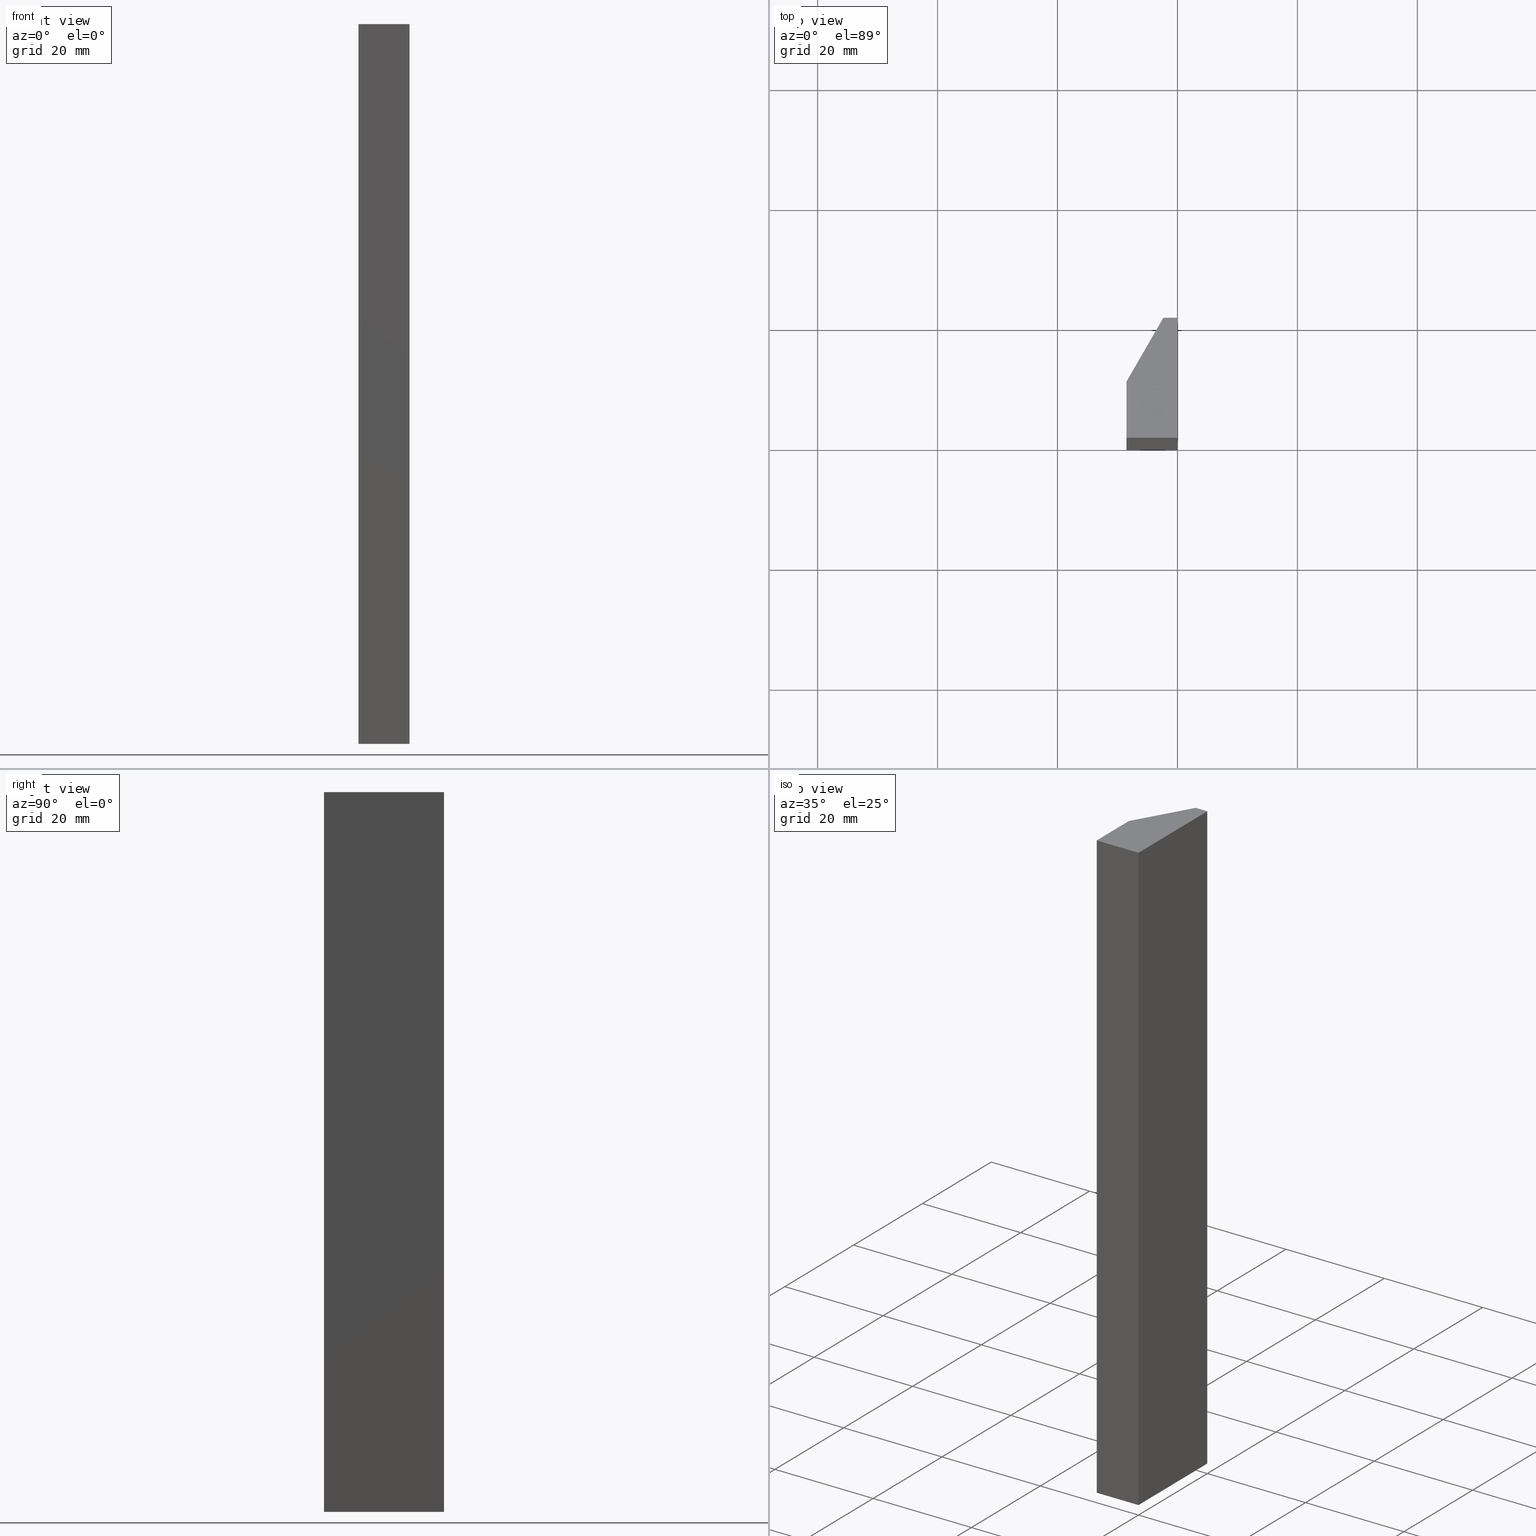
[diagram: canonical four-view strip — front | top / right | iso, engineering-drawing reading convention]
A machine part, canonical four-view strip (front | top / right | iso — engineering-drawing reading convention). The complete STEP part file that produces these views, byte-faithful:
ISO-10303-21;
HEADER;
/* Generated by software containing ST-Developer
 * from STEP Tools, Inc. (www.steptools.com) 
 */

FILE_DESCRIPTION(
/* description */ ('WKZ-0465'),
/* implementation_level */ '2;1');

FILE_NAME(
/* name */ 'O_3_01_06_06_00_WKZ-0465.stp',
/* time_stamp */ '2025-06-18T09:06:27+02:00',
/* author */ ('d.fischer'),
/* organization */ (''),
/* preprocessor_version */ 'ST-DEVELOPER v20',
/* originating_system */ 'Autodesk Inventor 2025',
/* authorisation */ '');

FILE_SCHEMA (('AUTOMOTIVE_DESIGN { 1 0 10303 214 3 1 1 }'));
ENDSEC;

DATA;
#10=MECHANICAL_DESIGN_GEOMETRIC_PRESENTATION_REPRESENTATION('',(#13),#225);
#11=SHAPE_REPRESENTATION_RELATIONSHIP('SRR','None',#232,#12);
#12=ADVANCED_BREP_SHAPE_REPRESENTATION('',(#14),#224);
#13=STYLED_ITEM('',(#241),#14);
#14=MANIFOLD_SOLID_BREP('Volumenk\X\F6rper1',#128);
#15=FACE_OUTER_BOUND('',#22,.T.);
#16=FACE_OUTER_BOUND('',#23,.T.);
#17=FACE_OUTER_BOUND('',#24,.T.);
#18=FACE_OUTER_BOUND('',#25,.T.);
#19=FACE_OUTER_BOUND('',#26,.T.);
#20=FACE_OUTER_BOUND('',#27,.T.);
#21=FACE_OUTER_BOUND('',#28,.T.);
#22=EDGE_LOOP('',(#84,#85,#86,#87,#88));
#23=EDGE_LOOP('',(#89,#90,#91,#92));
#24=EDGE_LOOP('',(#93,#94,#95,#96));
#25=EDGE_LOOP('',(#97,#98,#99,#100));
#26=EDGE_LOOP('',(#101,#102,#103,#104));
#27=EDGE_LOOP('',(#105,#106,#107,#108));
#28=EDGE_LOOP('',(#109,#110,#111,#112,#113));
#29=LINE('',#193,#44);
#30=LINE('',#195,#45);
#31=LINE('',#197,#46);
#32=LINE('',#199,#47);
#33=LINE('',#200,#48);
#34=LINE('',#203,#49);
#35=LINE('',#205,#50);
#36=LINE('',#206,#51);
#37=LINE('',#209,#52);
#38=LINE('',#210,#53);
#39=LINE('',#213,#54);
#40=LINE('',#214,#55);
#41=LINE('',#217,#56);
#42=LINE('',#218,#57);
#43=LINE('',#220,#58);
#44=VECTOR('',#162,10.);
#45=VECTOR('',#163,10.);
#46=VECTOR('',#164,10.);
#47=VECTOR('',#165,10.);
#48=VECTOR('',#166,10.);
#49=VECTOR('',#169,10.);
#50=VECTOR('',#170,10.);
#51=VECTOR('',#171,10.);
#52=VECTOR('',#174,10.);
#53=VECTOR('',#175,10.);
#54=VECTOR('',#178,10.);
#55=VECTOR('',#179,10.);
#56=VECTOR('',#182,10.);
#57=VECTOR('',#183,10.);
#58=VECTOR('',#186,10.);
#59=VERTEX_POINT('',#191);
#60=VERTEX_POINT('',#192);
#61=VERTEX_POINT('',#194);
#62=VERTEX_POINT('',#196);
#63=VERTEX_POINT('',#198);
#64=VERTEX_POINT('',#202);
#65=VERTEX_POINT('',#204);
#66=VERTEX_POINT('',#208);
#67=VERTEX_POINT('',#212);
#68=VERTEX_POINT('',#216);
#69=EDGE_CURVE('',#59,#60,#29,.T.);
#70=EDGE_CURVE('',#60,#61,#30,.T.);
#71=EDGE_CURVE('',#61,#62,#31,.T.);
#72=EDGE_CURVE('',#62,#63,#32,.T.);
#73=EDGE_CURVE('',#63,#59,#33,.T.);
#74=EDGE_CURVE('',#64,#60,#34,.T.);
#75=EDGE_CURVE('',#65,#64,#35,.T.);
#76=EDGE_CURVE('',#61,#65,#36,.T.);
#77=EDGE_CURVE('',#66,#65,#37,.T.);
#78=EDGE_CURVE('',#62,#66,#38,.T.);
#79=EDGE_CURVE('',#67,#66,#39,.T.);
#80=EDGE_CURVE('',#63,#67,#40,.T.);
#81=EDGE_CURVE('',#68,#67,#41,.T.);
#82=EDGE_CURVE('',#59,#68,#42,.T.);
#83=EDGE_CURVE('',#64,#68,#43,.T.);
#84=ORIENTED_EDGE('',*,*,#69,.T.);
#85=ORIENTED_EDGE('',*,*,#70,.T.);
#86=ORIENTED_EDGE('',*,*,#71,.T.);
#87=ORIENTED_EDGE('',*,*,#72,.T.);
#88=ORIENTED_EDGE('',*,*,#73,.T.);
#89=ORIENTED_EDGE('',*,*,#74,.F.);
#90=ORIENTED_EDGE('',*,*,#75,.F.);
#91=ORIENTED_EDGE('',*,*,#76,.F.);
#92=ORIENTED_EDGE('',*,*,#70,.F.);
#93=ORIENTED_EDGE('',*,*,#76,.T.);
#94=ORIENTED_EDGE('',*,*,#77,.F.);
#95=ORIENTED_EDGE('',*,*,#78,.F.);
#96=ORIENTED_EDGE('',*,*,#71,.F.);
#97=ORIENTED_EDGE('',*,*,#78,.T.);
#98=ORIENTED_EDGE('',*,*,#79,.F.);
#99=ORIENTED_EDGE('',*,*,#80,.F.);
#100=ORIENTED_EDGE('',*,*,#72,.F.);
#101=ORIENTED_EDGE('',*,*,#80,.T.);
#102=ORIENTED_EDGE('',*,*,#81,.F.);
#103=ORIENTED_EDGE('',*,*,#82,.F.);
#104=ORIENTED_EDGE('',*,*,#73,.F.);
#105=ORIENTED_EDGE('',*,*,#82,.T.);
#106=ORIENTED_EDGE('',*,*,#83,.F.);
#107=ORIENTED_EDGE('',*,*,#74,.T.);
#108=ORIENTED_EDGE('',*,*,#69,.F.);
#109=ORIENTED_EDGE('',*,*,#83,.T.);
#110=ORIENTED_EDGE('',*,*,#81,.T.);
#111=ORIENTED_EDGE('',*,*,#79,.T.);
#112=ORIENTED_EDGE('',*,*,#77,.T.);
#113=ORIENTED_EDGE('',*,*,#75,.T.);
#114=PLANE('',#151);
#115=PLANE('',#152);
#116=PLANE('',#153);
#117=PLANE('',#154);
#118=PLANE('',#155);
#119=PLANE('',#156);
#120=PLANE('',#157);
#121=ADVANCED_FACE('',(#15),#114,.T.);
#122=ADVANCED_FACE('',(#16),#115,.T.);
#123=ADVANCED_FACE('',(#17),#116,.T.);
#124=ADVANCED_FACE('',(#18),#117,.T.);
#125=ADVANCED_FACE('',(#19),#118,.T.);
#126=ADVANCED_FACE('',(#20),#119,.T.);
#127=ADVANCED_FACE('',(#21),#120,.T.);
#128=CLOSED_SHELL('',(#121,#122,#123,#124,#125,#126,#127));
#129=DERIVED_UNIT_ELEMENT(#132,1.);
#130=DERIVED_UNIT_ELEMENT(#227,-3.);
#131=DIMENSIONAL_EXPONENTS(0.,1.,0.,0.,0.,0.,0.);
#132=(
CONVERSION_BASED_UNIT('gram',#134)
MASS_UNIT()
NAMED_UNIT(#131)
);
#133=(
MASS_UNIT()
NAMED_UNIT(*)
SI_UNIT(.KILO.,.GRAM.)
);
#134=MASS_MEASURE_WITH_UNIT(MASS_MEASURE(0.001),#133);
#135=DERIVED_UNIT((#129,#130));
#136=MEASURE_REPRESENTATION_ITEM('density measure',
POSITIVE_RATIO_MEASURE(1.),#135);
#137=PROPERTY_DEFINITION_REPRESENTATION(#142,#139);
#138=PROPERTY_DEFINITION_REPRESENTATION(#143,#140);
#139=REPRESENTATION('material name',(#141),#224);
#140=REPRESENTATION('density',(#136),#224);
#141=DESCRIPTIVE_REPRESENTATION_ITEM('Generisch','Generisch');
#142=PROPERTY_DEFINITION('material property','material name',#234);
#143=PROPERTY_DEFINITION('material property','density of part',#234);
#144=DATE_TIME_ROLE('creation_date');
#145=APPLIED_DATE_AND_TIME_ASSIGNMENT(#146,#144,(#234));
#146=DATE_AND_TIME(#147,#148);
#147=CALENDAR_DATE(2024,27,11);
#148=LOCAL_TIME(0,0,0.,#149);
#149=COORDINATED_UNIVERSAL_TIME_OFFSET(0,0,.BEHIND.);
#150=AXIS2_PLACEMENT_3D('',#189,#158,#159);
#151=AXIS2_PLACEMENT_3D('',#190,#160,#161);
#152=AXIS2_PLACEMENT_3D('',#201,#167,#168);
#153=AXIS2_PLACEMENT_3D('',#207,#172,#173);
#154=AXIS2_PLACEMENT_3D('',#211,#176,#177);
#155=AXIS2_PLACEMENT_3D('',#215,#180,#181);
#156=AXIS2_PLACEMENT_3D('',#219,#184,#185);
#157=AXIS2_PLACEMENT_3D('',#221,#187,#188);
#158=DIRECTION('axis',(0.,0.,1.));
#159=DIRECTION('refdir',(1.,0.,0.));
#160=DIRECTION('center_axis',(0.,0.,-1.));
#161=DIRECTION('ref_axis',(-1.,0.,0.));
#162=DIRECTION('',(1.11022302462516E-16,-1.,0.));
#163=DIRECTION('',(-1.,-1.95921710227969E-16,0.));
#164=DIRECTION('',(0.,1.,0.));
#165=DIRECTION('',(0.5,0.866025403784439,0.));
#166=DIRECTION('',(1.,0.,0.));
#167=DIRECTION('center_axis',(1.95921710227969E-16,-1.,0.));
#168=DIRECTION('ref_axis',(1.,1.95921710227969E-16,0.));
#169=DIRECTION('',(0.,0.,-1.));
#170=DIRECTION('',(1.,1.95921710227969E-16,0.));
#171=DIRECTION('',(0.,0.,1.));
#172=DIRECTION('center_axis',(-1.,0.,0.));
#173=DIRECTION('ref_axis',(0.,-1.,0.));
#174=DIRECTION('',(0.,-1.,0.));
#175=DIRECTION('',(0.,0.,1.));
#176=DIRECTION('center_axis',(-0.866025403784439,0.5,0.));
#177=DIRECTION('ref_axis',(-0.5,-0.866025403784439,0.));
#178=DIRECTION('',(-0.5,-0.866025403784439,0.));
#179=DIRECTION('',(0.,0.,1.));
#180=DIRECTION('center_axis',(0.,1.,0.));
#181=DIRECTION('ref_axis',(-1.,0.,0.));
#182=DIRECTION('',(-1.,0.,0.));
#183=DIRECTION('',(0.,0.,1.));
#184=DIRECTION('center_axis',(1.,1.11022302462516E-16,0.));
#185=DIRECTION('ref_axis',(-1.11022302462516E-16,1.,0.));
#186=DIRECTION('',(-1.11022302462516E-16,1.,0.));
#187=DIRECTION('center_axis',(0.,0.,1.));
#188=DIRECTION('ref_axis',(1.,0.,0.));
#189=CARTESIAN_POINT('',(0.,0.,0.));
#190=CARTESIAN_POINT('Origin',(-4.25,10.,-60.));
#191=CARTESIAN_POINT('',(-2.22044604925031E-15,20.,-60.));
#192=CARTESIAN_POINT('',(0.,0.,-60.));
#193=CARTESIAN_POINT('',(0.,0.,-60.));
#194=CARTESIAN_POINT('',(-8.5,-1.66533453693773E-15,-60.));
#195=CARTESIAN_POINT('',(-8.5,-1.66533453693773E-15,-60.));
#196=CARTESIAN_POINT('',(-8.5,9.36,-60.));
#197=CARTESIAN_POINT('',(-8.5,9.36,-60.));
#198=CARTESIAN_POINT('',(-2.35699313582239,20.,-60.));
#199=CARTESIAN_POINT('',(-2.35699313582239,20.,-60.));
#200=CARTESIAN_POINT('',(-2.22044604925031E-15,20.,-60.));
#201=CARTESIAN_POINT('Origin',(-8.5,-1.66533453693773E-15,0.));
#202=CARTESIAN_POINT('',(0.,0.,60.));
#203=CARTESIAN_POINT('',(0.,0.,0.));
#204=CARTESIAN_POINT('',(-8.5,-1.66533453693773E-15,60.));
#205=CARTESIAN_POINT('',(-8.5,-1.66533453693773E-15,60.));
#206=CARTESIAN_POINT('',(-8.5,-1.66533453693773E-15,0.));
#207=CARTESIAN_POINT('Origin',(-8.5,9.36,0.));
#208=CARTESIAN_POINT('',(-8.5,9.36,60.));
#209=CARTESIAN_POINT('',(-8.5,9.36,60.));
#210=CARTESIAN_POINT('',(-8.5,9.36,0.));
#211=CARTESIAN_POINT('Origin',(-2.35699313582239,20.,0.));
#212=CARTESIAN_POINT('',(-2.35699313582239,20.,60.));
#213=CARTESIAN_POINT('',(-2.35699313582239,20.,60.));
#214=CARTESIAN_POINT('',(-2.35699313582239,20.,0.));
#215=CARTESIAN_POINT('Origin',(-2.22044604925031E-15,20.,0.));
#216=CARTESIAN_POINT('',(-2.22044604925031E-15,20.,60.));
#217=CARTESIAN_POINT('',(-2.22044604925031E-15,20.,60.));
#218=CARTESIAN_POINT('',(-2.22044604925031E-15,20.,0.));
#219=CARTESIAN_POINT('Origin',(0.,0.,0.));
#220=CARTESIAN_POINT('',(0.,0.,60.));
#221=CARTESIAN_POINT('Origin',(-4.25,10.,60.));
#222=UNCERTAINTY_MEASURE_WITH_UNIT(LENGTH_MEASURE(0.01),#226,
'DISTANCE_ACCURACY_VALUE',
'Maximum model space distance between geometric entities at asserted c
onnectivities');
#223=UNCERTAINTY_MEASURE_WITH_UNIT(LENGTH_MEASURE(0.01),#226,
'DISTANCE_ACCURACY_VALUE',
'Maximum model space distance between geometric entities at asserted c
onnectivities');
#224=(
GEOMETRIC_REPRESENTATION_CONTEXT(3)
GLOBAL_UNCERTAINTY_ASSIGNED_CONTEXT((#222))
GLOBAL_UNIT_ASSIGNED_CONTEXT((#226,#228,#229))
REPRESENTATION_CONTEXT('','3D')
);
#225=(
GEOMETRIC_REPRESENTATION_CONTEXT(3)
GLOBAL_UNCERTAINTY_ASSIGNED_CONTEXT((#223))
GLOBAL_UNIT_ASSIGNED_CONTEXT((#226,#228,#229))
REPRESENTATION_CONTEXT('','3D')
);
#226=(
LENGTH_UNIT()
NAMED_UNIT(*)
SI_UNIT(.MILLI.,.METRE.)
);
#227=(
LENGTH_UNIT()
NAMED_UNIT(*)
SI_UNIT(.CENTI.,.METRE.)
);
#228=(
NAMED_UNIT(*)
PLANE_ANGLE_UNIT()
SI_UNIT($,.RADIAN.)
);
#229=(
NAMED_UNIT(*)
SI_UNIT($,.STERADIAN.)
SOLID_ANGLE_UNIT()
);
#230=SHAPE_DEFINITION_REPRESENTATION(#231,#232);
#231=PRODUCT_DEFINITION_SHAPE('',$,#234);
#232=SHAPE_REPRESENTATION('',(#150),#224);
#233=PRODUCT_DEFINITION_CONTEXT('part definition',#238,'design');
#234=PRODUCT_DEFINITION('O_3_01_06_06_00_WKZ-0465',
'O_3_01_06_06_00_WKZ-0465',#235,#233);
#235=PRODUCT_DEFINITION_FORMATION('',$,#240);
#236=PRODUCT_RELATED_PRODUCT_CATEGORY('O_3_01_06_06_00_WKZ-0465',
'O_3_01_06_06_00_WKZ-0465',(#240));
#237=APPLICATION_PROTOCOL_DEFINITION('international standard',
'automotive_design',2009,#238);
#238=APPLICATION_CONTEXT(
'Core Data for Automotive Mechanical Design Process');
#239=PRODUCT_CONTEXT('part definition',#238,'mechanical');
#240=PRODUCT('O_3_01_06_06_00_WKZ-0465','O_3_01_06_06_00_WKZ-0465',
'WKZ-0465',(#239));
#241=PRESENTATION_STYLE_ASSIGNMENT((#242));
#242=SURFACE_STYLE_USAGE(.BOTH.,#245);
#243=SURFACE_STYLE_RENDERING_WITH_PROPERTIES($,#249,(#244));
#244=SURFACE_STYLE_TRANSPARENT(0.);
#245=SURFACE_SIDE_STYLE('',(#246,#243));
#246=SURFACE_STYLE_FILL_AREA(#247);
#247=FILL_AREA_STYLE('',(#248));
#248=FILL_AREA_STYLE_COLOUR('',#249);
#249=COLOUR_RGB('',0.749019607843137,0.749019607843137,0.749019607843137);
ENDSEC;
END-ISO-10303-21;
